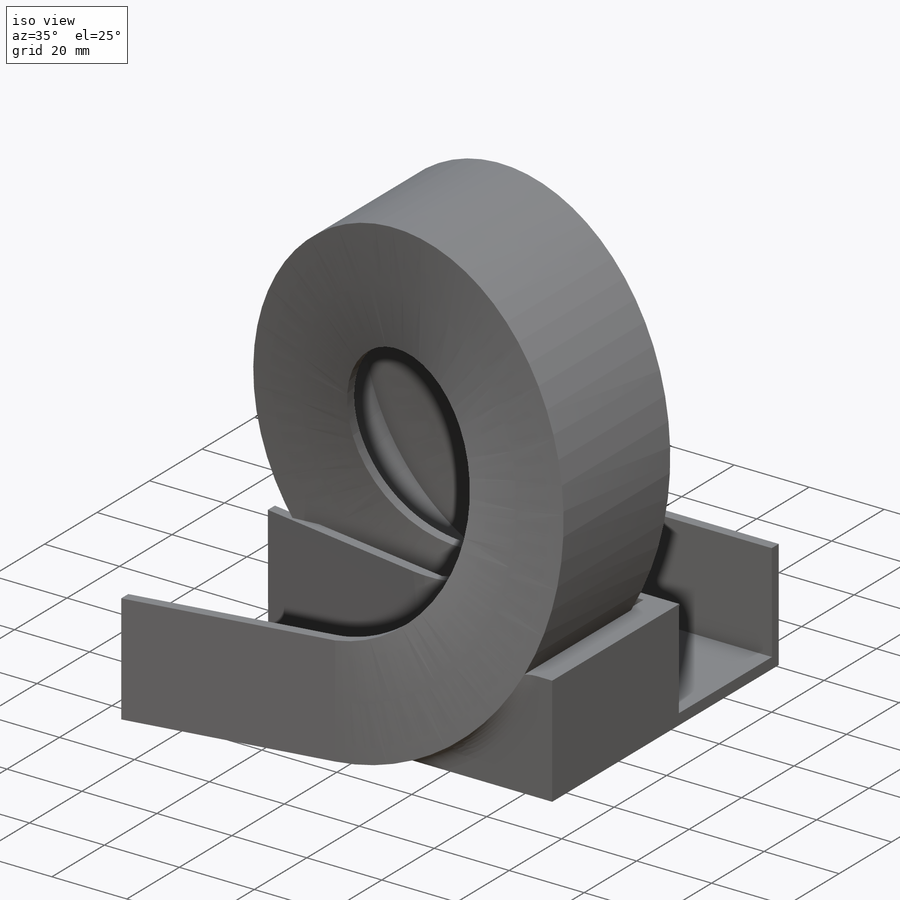
[diagram: iso view]
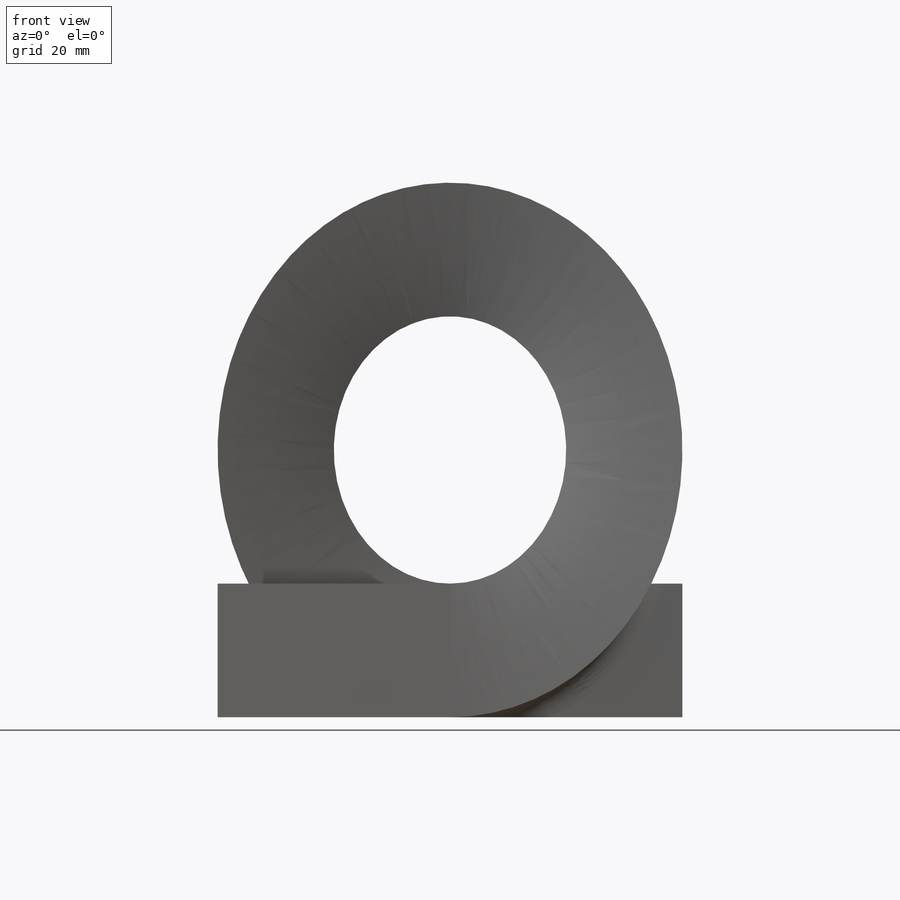
[diagram: front view]
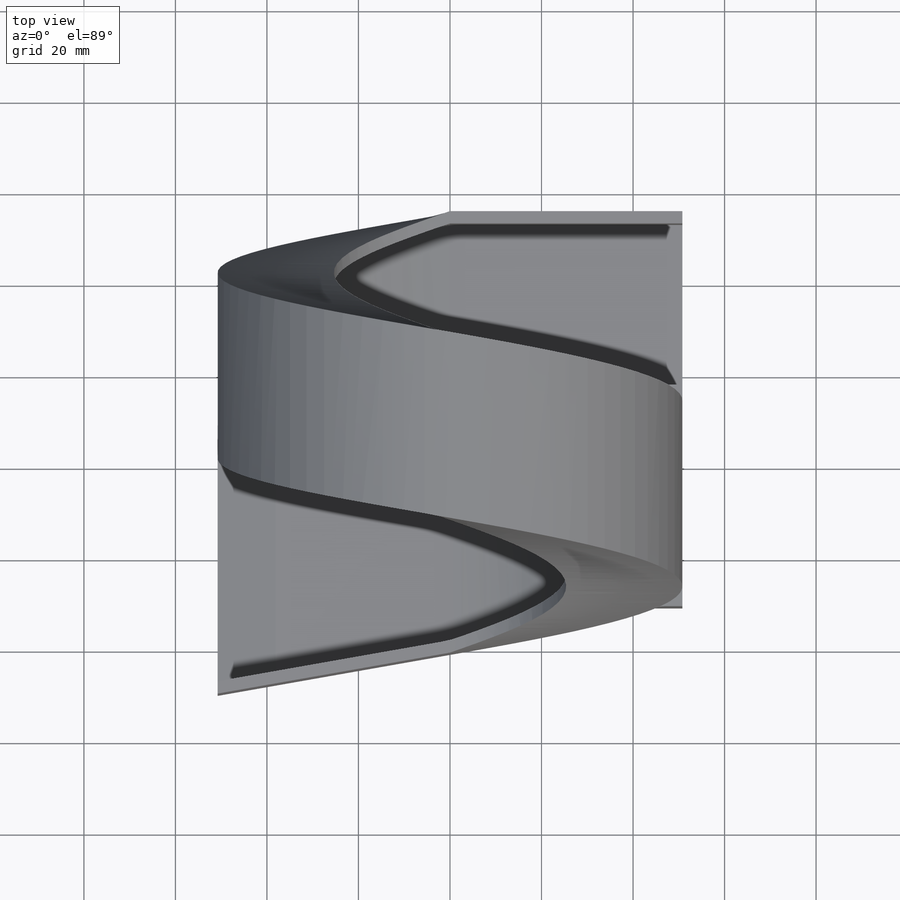
[diagram: top view]
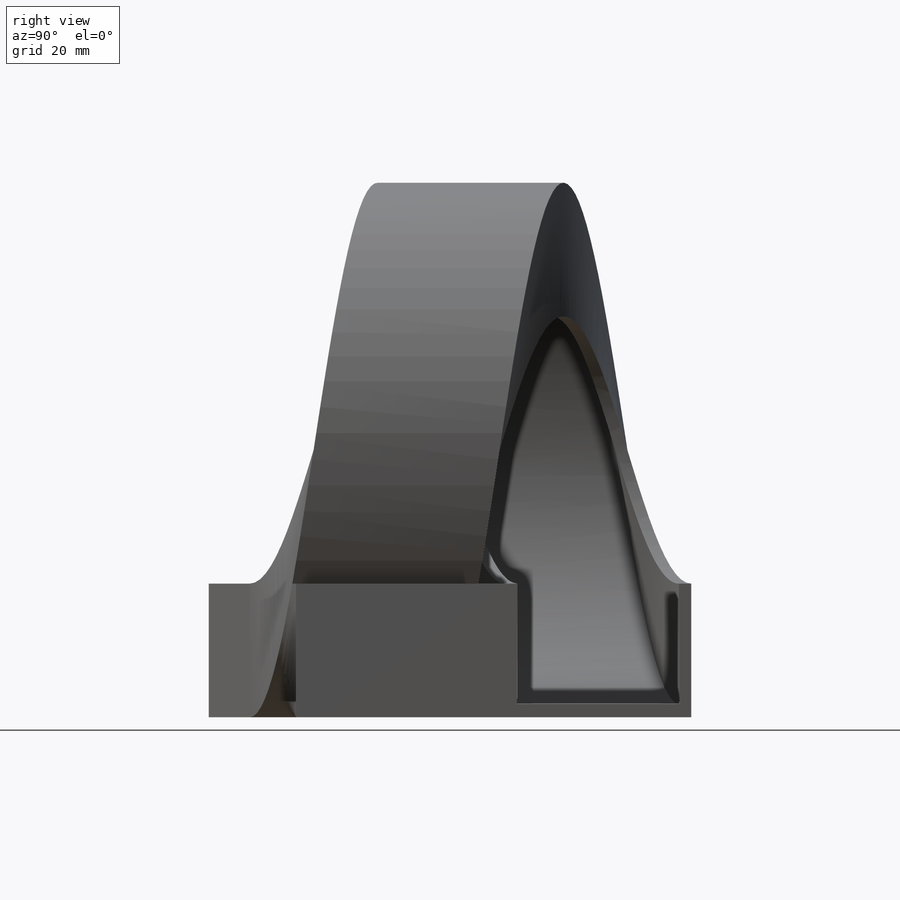
[diagram: right view]
SOLIDWORKS PART (.sldprt)
format: sldprt  version: not decoded by parser v0  size: 1,052,160 bytes
history: native  units: mm
features: sketch x20, extrude x9, sweep x5, cut_extrude x5, fillet x3, material x1, helix x1, shell x1, chamfer x1 (+13 scaffold rows collapsed)
feature tree (59):
  scaffold x13  (default folders/planes/origin — collapsed)
  material  "Material <not specified>"
  sketch  "Sketch7"  dims[D1=110.0mm]
  helix  "Helix/Spiral2"  Pitch=55.88mm
  sketch  "Sketch8"  dims[c1.D1=~24.853565mm c1.D2=~19.079489mm c2.D1=40.64mm c2.D2=25.4mm]
  sweep  "Sweep2"
  shell  "Shell2"  Thickness=2.54mm
  sketch  "Sketch9"  dims[D1=~2.452813mm D2=38.1mm]
  extrude  "Boss-Extrude2"  Depth=50.8mm
  sketch  "Sketch12"  dims[D1=0.0mm]
  sweep  "Sweep3"
  sketch  "Sketch13"  dims[D1=0.0mm]
  sweep  "Sweep4"
  sketch  "Sketch14"  dims[D1=~2.443302mm D2=38.1mm]
  extrude  "Boss-Extrude5"  Depth=50.8mm
  sketch  "Sketch15"  dims[D1=0.0mm]
  sweep  "Sweep5"
  sketch  "Sketch16"  dims[D1=0.0mm]
  sweep  "Sweep6"
  sketch  "Sketch38"  dims[D1=7.62mm]
  extrude  "Boss-Extrude21"  Depth=45.72mm
  fillet  "Fillet1"  Radius=5.08mm
  fillet  "Fillet2"  Radius=25.4mm
  fillet  "Fillet3"  Radius=25.4mm
  chamfer  "Chamfer1"  Distance=12.7mm
  sketch  "Sketch17"  dims[c1.D1=~40.409101mm c1.D2=~7.857325mm c2.D1=63.5mm c2.D2=0.254mm]
  cut_extrude  "split"  Depth=2.54mm
  sketch  "Sketch27"  dims[D1=3.048mm D2=1.27mm]
  extrude  "Boss-Extrude14"  Depth=2.54mm
  sketch  "Sketch28"  dims[D1=1.27mm]
  extrude  "Boss-Extrude15"  Depth=2.54mm
  sketch  "Sketch29"
  extrude  "Boss-Extrude16"  Depth=2.54mm
  sketch  "Sketch30"  dims[D1=32.258mm]
  extrude  "Boss-Extrude17"  [1 undecoded]
  sketch  "Sketch32"  dims[c1.D1=5.334mm c2.D1=12.0deg]
  cut_extrude  "Cut-Extrude4"  [1 undecoded]
  sketch  "Sketch33"  dims[c1.D1=2.54mm c2.D1=12.0deg]
  cut_extrude  "Cut-Extrude5"  [1 undecoded]
  sketch  "Sketch31"  dims[D1=~12.024371mm]
  extrude  "Boss-Extrude18"  Depth=2.54mm
  sketch  "Sketch34"  dims[D1=~42.266592mm]
  extrude  "Boss-Extrude19"  [1 undecoded]
  sketch  "Sketch35"  dims[c1.D1=~2.625904mm c2.D1=12.0deg]
  cut_extrude  "Cut-Extrude6"  [1 undecoded]
  sketch  "Sketch36"  dims[D1=~2.007981mm]
  cut_extrude  "Cut-Extrude7"  [1 undecoded]
decode coverage: 33 of 45 modeling features carry decoded parameters
note: ~ marks probable driven/reference dimensions
note: 6 parameter values undecoded
summary: no parameter record found for 6 features; profile_refs inferred from adjacent sketches, not decoded
note: suppression state not decoded; provenance and decode notes live in map.json
